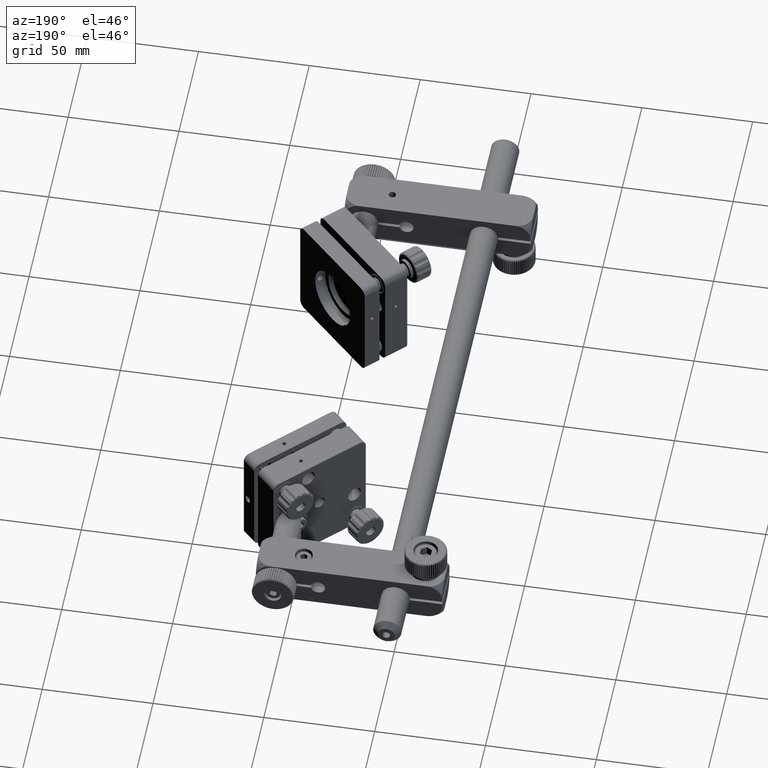
[diagram: clean part render]
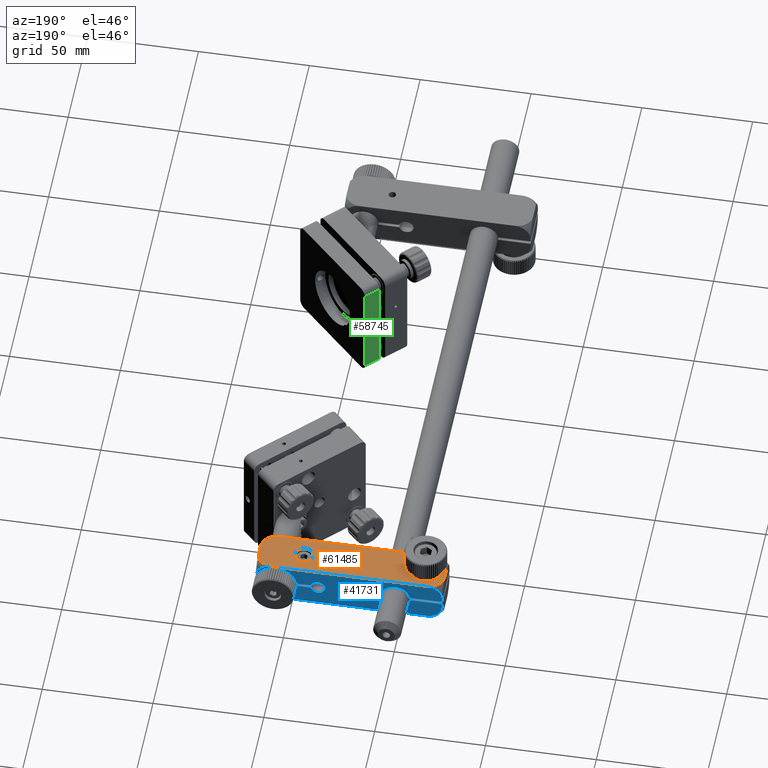
[diagram: same view with three faces highlighted in distinct colors, each labeled with its STEP entity id]
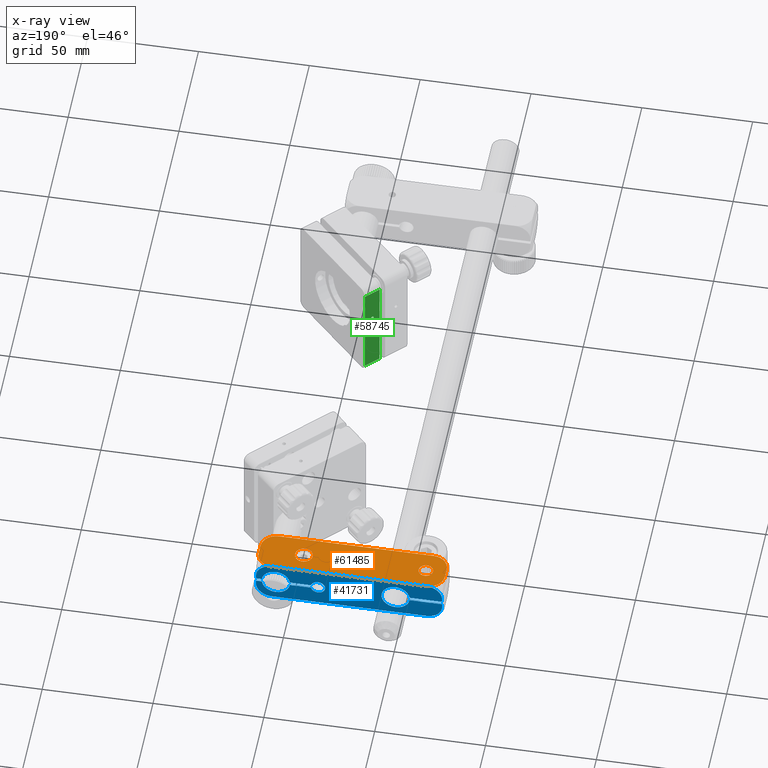
[diagram: x-ray of the same camera — body ghosted, the three highlighted faces saturated]
A machine part, auxiliary view with three faces highlighted in distinct colors.
The next image is the same camera in x-ray (body ghosted, the three faces saturated) — at least one of them is partly hidden behind the body in this view.
Their STEP definitions:

[orange] entity #61485 — the highlighted planar face has unit normal (-0, 0, 1).
#711 = ORIENTED_EDGE ( 'NONE', *, *, #60690, .T. ) ;
#1943 = CARTESIAN_POINT ( 'NONE',  ( -13.92893218813413547, 296.5265331105718474, 9.499999999999944933 ) ) ;
#2108 = CARTESIAN_POINT ( 'NONE',  ( 63.00000000000023448, 296.5265331105718474, 9.499999999999950262 ) ) ;
#2191 = FACE_BOUND ( 'NONE', #40521, .T. ) ;
#2286 = ORIENTED_EDGE ( 'NONE', *, *, #54175, .F. ) ;
#3126 = CARTESIAN_POINT ( 'NONE',  ( -20.99999999999964828, 277.5265331105718474, 9.499999999999944933 ) ) ;
#3468 = CARTESIAN_POINT ( 'NONE',  ( -20.99999999999964828, 296.5265331105718474, 9.499999999999950262 ) ) ;
#3612 = DIRECTION ( 'NONE',  ( -2.465190328815663534E-32, 2.958228394578796022E-31, 1.000000000000000000 ) ) ;
#4088 = LINE ( 'NONE', #3468, #5450 ) ;
#4736 = CARTESIAN_POINT ( 'NONE',  ( -20.99999999999964828, 277.5265331105718474, 9.499999999999944933 ) ) ;
#5450 = VECTOR ( 'NONE', #32068, 1000.000000000000000 ) ;
#7651 = CARTESIAN_POINT ( 'NONE',  ( -20.99999999999957723, 284.5976009224373797, 9.500000000000024869 ) ) ;
#8198 = EDGE_CURVE ( 'NONE', #55094, #60157, #62648, .T. ) ;
#8672 = AXIS2_PLACEMENT_3D ( 'NONE', #47060, #3612, #61937 ) ;
#9359 = CARTESIAN_POINT ( 'NONE',  ( -11.99999999999964650, 287.0265331105718474, 9.499999999999944933 ) ) ;
#10318 = VERTEX_POINT ( 'NONE', #56365 ) ;
#10504 = AXIS2_PLACEMENT_3D ( 'NONE', #51375, #41589, #23432 ) ;
#11058 = EDGE_CURVE ( 'NONE', #35267, #29755, #53209, .T. ) ;
#11471 = ORIENTED_EDGE ( 'NONE', *, *, #11058, .F. ) ;
#11960 = EDGE_CURVE ( 'NONE', #21051, #10318, #40308, .T. ) ;
#12825 = AXIS2_PLACEMENT_3D ( 'NONE', #24166, #49210, #20071 ) ;
#15971 = VERTEX_POINT ( 'NONE', #18796 ) ;
#17145 = EDGE_LOOP ( 'NONE', ( #58792, #59178, #42184, #41828, #43434, #52785, #711, #28288 ) ) ;
#17185 = DIRECTION ( 'NONE',  ( -2.465190328815663534E-32, 2.958228394578796022E-31, 1.000000000000000000 ) ) ;
#18012 = DIRECTION ( 'NONE',  ( -2.465190328815663534E-32, 2.958228394578796022E-31, 1.000000000000000000 ) ) ;
#18401 = EDGE_CURVE ( 'NONE', #56590, #60876, #32522, .T. ) ;
#18796 = CARTESIAN_POINT ( 'NONE',  ( 63.00000000000020606, 284.5976009224373797, 9.499999999999989342 ) ) ;
#20071 = DIRECTION ( 'NONE',  ( 1.000000000000000000, 0.000000000000000000, 0.000000000000000000 ) ) ;
#20130 = CARTESIAN_POINT ( 'NONE',  ( 47.00000000000028422, 287.0265331105718474, 9.499999999999944933 ) ) ;
#21029 = DIRECTION ( 'NONE',  ( -2.465190328815663534E-32, 2.958228394578796022E-31, 1.000000000000000000 ) ) ;
#21051 = VERTEX_POINT ( 'NONE', #20130 ) ;
#21054 = VECTOR ( 'NONE', #49712, 1000.000000000000000 ) ;
#22677 = DIRECTION ( 'NONE',  ( -2.465190328815663534E-32, 2.958228394578796022E-31, 1.000000000000000000 ) ) ;
#23006 = CARTESIAN_POINT ( 'NONE',  ( -13.92893218813413547, 289.4554652987063719, 9.499999999999950262 ) ) ;
#23432 = DIRECTION ( 'NONE',  ( 1.000000000000000000, 0.000000000000000000, 0.000000000000000000 ) ) ;
#23740 = EDGE_CURVE ( 'NONE', #40193, #57499, #28869, .T. ) ;
#23900 = CARTESIAN_POINT ( 'NONE',  ( 55.92893218813475897, 277.5265331105718474, 9.499999999999944933 ) ) ;
#24166 = CARTESIAN_POINT ( 'NONE',  ( 43.00000000000029843, 287.0265331105718474, 9.499999999999944933 ) ) ;
#24944 = CIRCLE ( 'NONE', #8672, 3.249999999999997780 ) ;
#25146 = CARTESIAN_POINT ( 'NONE',  ( 43.00000000000029843, 287.0265331105718474, 9.499999999999944933 ) ) ;
#26394 = CARTESIAN_POINT ( 'NONE',  ( -13.92893218813413547, 284.5976009224373797, 9.499999999999944933 ) ) ;
#26548 = LINE ( 'NONE', #2108, #21054 ) ;
#26628 = PLANE ( 'NONE',  #38420 ) ;
#28068 = CIRCLE ( 'NONE', #46299, 7.071067811865497710 ) ;
#28288 = ORIENTED_EDGE ( 'NONE', *, *, #18401, .T. ) ;
#28869 = LINE ( 'NONE', #4736, #39922 ) ;
#29755 = VERTEX_POINT ( 'NONE', #33725 ) ;
#29834 = CIRCLE ( 'NONE', #56075, 3.999999999999989786 ) ;
#30055 = CARTESIAN_POINT ( 'NONE',  ( -20.99999999999964828, 296.5265331105718474, 9.499999999999950262 ) ) ;
#30786 = FACE_OUTER_BOUND ( 'NONE', #17145, .T. ) ;
#32068 = DIRECTION ( 'NONE',  ( -4.299226218971816190E-31, -1.000000000000000000, -2.958228394578794270E-31 ) ) ;
#32522 = CIRCLE ( 'NONE', #52755, 7.071067811865491493 ) ;
#33725 = CARTESIAN_POINT ( 'NONE',  ( -8.749999999999648281, 287.0265331105718474, 9.499999999999944933 ) ) ;
#33874 = EDGE_CURVE ( 'NONE', #10318, #21051, #29834, .T. ) ;
#35267 = VERTEX_POINT ( 'NONE', #56470 ) ;
#36859 = DIRECTION ( 'NONE',  ( -2.465190328815663534E-32, 2.958228394578796022E-31, 1.000000000000000000 ) ) ;
#38132 = CARTESIAN_POINT ( 'NONE',  ( -20.99999999999961275, 289.4554652987063719, 9.499999999999984013 ) ) ;
#38420 = AXIS2_PLACEMENT_3D ( 'NONE', #3126, #50709, #55777 ) ;
#39922 = VECTOR ( 'NONE', #58624, 1000.000000000000000 ) ;
#40193 = VERTEX_POINT ( 'NONE', #49225 ) ;
#40308 = CIRCLE ( 'NONE', #12825, 3.999999999999989786 ) ;
#40497 = AXIS2_PLACEMENT_3D ( 'NONE', #23006, #22677, #42051 ) ;
#40521 = EDGE_LOOP ( 'NONE', ( #2286, #11471 ) ) ;
#41352 = ORIENTED_EDGE ( 'NONE', *, *, #33874, .F. ) ;
#41589 = DIRECTION ( 'NONE',  ( -2.465190328815663534E-32, 2.958228394578796022E-31, 1.000000000000000000 ) ) ;
#41828 = ORIENTED_EDGE ( 'NONE', *, *, #60026, .T. ) ;
#42051 = DIRECTION ( 'NONE',  ( 1.000000000000000000, 0.000000000000000000, 0.000000000000000000 ) ) ;
#42184 = ORIENTED_EDGE ( 'NONE', *, *, #51955, .T. ) ;
#42262 = EDGE_CURVE ( 'NONE', #60876, #55094, #59495, .T. ) ;
#42714 = DIRECTION ( 'NONE',  ( 1.000000000000000000, 0.000000000000000000, 0.000000000000000000 ) ) ;
#43434 = ORIENTED_EDGE ( 'NONE', *, *, #23740, .T. ) ;
#44925 = DIRECTION ( 'NONE',  ( -1.000000000000000000, -4.303078078860594165E-31, -2.465190328815664081E-32 ) ) ;
#45142 = CARTESIAN_POINT ( 'NONE',  ( 63.00000000000017764, 289.4554652987063719, 9.500000000000019540 ) ) ;
#45172 = VECTOR ( 'NONE', #44925, 1000.000000000000000 ) ;
#46027 = CARTESIAN_POINT ( 'NONE',  ( 55.92893218813475897, 289.4554652987063719, 9.499999999999944933 ) ) ;
#46299 = AXIS2_PLACEMENT_3D ( 'NONE', #26394, #36859, #54901 ) ;
#47060 = CARTESIAN_POINT ( 'NONE',  ( -11.99999999999964650, 287.0265331105718474, 9.499999999999944933 ) ) ;
#47928 = EDGE_LOOP ( 'NONE', ( #60989, #41352 ) ) ;
#49005 = CIRCLE ( 'NONE', #10504, 7.071067811865491493 ) ;
#49210 = DIRECTION ( 'NONE',  ( -2.465190328815663534E-32, 2.958228394578796022E-31, 1.000000000000000000 ) ) ;
#49225 = CARTESIAN_POINT ( 'NONE',  ( -13.92893218813413547, 277.5265331105718474, 9.499999999999950262 ) ) ;
#49712 = DIRECTION ( 'NONE',  ( 4.299226218971816190E-31, 1.000000000000000000, 2.958228394578794270E-31 ) ) ;
#50709 = DIRECTION ( 'NONE',  ( -2.465190328815663534E-32, 2.958228394578796460E-31, 1.000000000000000000 ) ) ;
#51375 = CARTESIAN_POINT ( 'NONE',  ( 55.92893218813475897, 284.5976009224373797, 9.499999999999944933 ) ) ;
#51896 = EDGE_CURVE ( 'NONE', #57499, #15971, #49005, .T. ) ;
#51955 = EDGE_CURVE ( 'NONE', #60157, #56563, #4088, .T. ) ;
#52755 = AXIS2_PLACEMENT_3D ( 'NONE', #46027, #17185, #56460 ) ;
#52785 = ORIENTED_EDGE ( 'NONE', *, *, #51896, .T. ) ;
#53209 = CIRCLE ( 'NONE', #58260, 3.249999999999997780 ) ;
#54175 = EDGE_CURVE ( 'NONE', #29755, #35267, #24944, .T. ) ;
#54901 = DIRECTION ( 'NONE',  ( 1.000000000000000000, 0.000000000000000000, 0.000000000000000000 ) ) ;
#55094 = VERTEX_POINT ( 'NONE', #1943 ) ;
#55777 = DIRECTION ( 'NONE',  ( 1.000000000000000000, 4.299226218971819693E-31, 2.465190328815663534E-32 ) ) ;
#56075 = AXIS2_PLACEMENT_3D ( 'NONE', #25146, #21029, #58715 ) ;
#56365 = CARTESIAN_POINT ( 'NONE',  ( 39.00000000000029843, 287.0265331105718474, 9.499999999999944933 ) ) ;
#56460 = DIRECTION ( 'NONE',  ( 1.000000000000000000, 0.000000000000000000, 0.000000000000000000 ) ) ;
#56470 = CARTESIAN_POINT ( 'NONE',  ( -15.24999999999964828, 287.0265331105718474, 9.499999999999944933 ) ) ;
#56563 = VERTEX_POINT ( 'NONE', #7651 ) ;
#56590 = VERTEX_POINT ( 'NONE', #45142 ) ;
#57499 = VERTEX_POINT ( 'NONE', #23900 ) ;
#58260 = AXIS2_PLACEMENT_3D ( 'NONE', #9359, #18012, #42714 ) ;
#58506 = CARTESIAN_POINT ( 'NONE',  ( 55.92893218813475897, 296.5265331105718474, 9.499999999999944933 ) ) ;
#58624 = DIRECTION ( 'NONE',  ( 1.000000000000000000, 4.303078078860594165E-31, 2.465190328815664081E-32 ) ) ;
#58715 = DIRECTION ( 'NONE',  ( 1.000000000000000000, 0.000000000000000000, 0.000000000000000000 ) ) ;
#58792 = ORIENTED_EDGE ( 'NONE', *, *, #42262, .T. ) ;
#59178 = ORIENTED_EDGE ( 'NONE', *, *, #8198, .T. ) ;
#59495 = LINE ( 'NONE', #30055, #45172 ) ;
#60026 = EDGE_CURVE ( 'NONE', #56563, #40193, #28068, .T. ) ;
#60157 = VERTEX_POINT ( 'NONE', #38132 ) ;
#60690 = EDGE_CURVE ( 'NONE', #15971, #56590, #26548, .T. ) ;
#60847 = FACE_BOUND ( 'NONE', #47928, .T. ) ;
#60876 = VERTEX_POINT ( 'NONE', #58506 ) ;
#60989 = ORIENTED_EDGE ( 'NONE', *, *, #11960, .F. ) ;
#61485 = ADVANCED_FACE ( 'NONE', ( #2191, #60847, #30786 ), #26628, .T. ) ;
#61937 = DIRECTION ( 'NONE',  ( 1.000000000000000000, 0.000000000000000000, 0.000000000000000000 ) ) ;
#62648 = CIRCLE ( 'NONE', #40497, 7.071067811865497710 ) ;

[blue] entity #41731 — the highlighted planar face has unit normal (-0, -1, 0).
#145 = AXIS2_PLACEMENT_3D ( 'NONE', #30584, #50197, #1689 ) ;
#235 = CARTESIAN_POINT ( 'NONE',  ( 3.330669073875469621E-13, 296.5265331105718474, 6.349999999999959677 ) ) ;
#477 = CARTESIAN_POINT ( 'NONE',  ( 63.00000000000023448, 296.5265331105717905, -2.428932188134598658 ) ) ;
#1366 = EDGE_CURVE ( 'NONE', #5551, #27847, #14448, .T. ) ;
#1689 = DIRECTION ( 'NONE',  ( 2.465190328815663534E-32, -2.958228394578796460E-31, -1.000000000000000000 ) ) ;
#1808 = LINE ( 'NONE', #55062, #26524 ) ;
#1829 = EDGE_LOOP ( 'NONE', ( #14443, #25384, #23753, #51658, #4506, #57314, #12341, #11528, #9493, #18837, #13337, #44309, #58826, #57987, #29081, #23999, #17577, #47791, #11092, #45168, #31450, #34346, #58493, #48022, #45021, #60160, #21972, #24480, #8327 ) ) ;
#1920 = DIRECTION ( 'NONE',  ( 1.000000000000000000, 4.299295579181839416E-31, 1.137413894084779007E-17 ) ) ;
#1931 = CARTESIAN_POINT ( 'NONE',  ( -13.92893218813413547, 296.5265331105718474, 2.428932188134509840 ) ) ;
#1943 = CARTESIAN_POINT ( 'NONE',  ( -13.92893218813413547, 296.5265331105718474, 9.499999999999944933 ) ) ;
#2158 = CARTESIAN_POINT ( 'NONE',  ( 3.330669073875469621E-13, 296.5265331105718474, -4.205630255272791670E-14 ) ) ;
#2351 = EDGE_CURVE ( 'NONE', #39948, #29371, #44188, .T. ) ;
#2576 = DIRECTION ( 'NONE',  ( 2.465190328815663534E-32, -2.958228394578796022E-31, -1.000000000000000000 ) ) ;
#3088 = CARTESIAN_POINT ( 'NONE',  ( 55.92893218813475897, 296.5265331105718474, -2.428932188134586223 ) ) ;
#3379 = DIRECTION ( 'NONE',  ( -4.299226218971816190E-31, -1.000000000000000000, -2.958228394578794270E-31 ) ) ;
#3814 = VECTOR ( 'NONE', #52879, 1000.000000000000000 ) ;
#3953 = AXIS2_PLACEMENT_3D ( 'NONE', #43366, #62668, #14431 ) ;
#4506 = ORIENTED_EDGE ( 'NONE', *, *, #41036, .F. ) ;
#4550 = VERTEX_POINT ( 'NONE', #57791 ) ;
#4559 = AXIS2_PLACEMENT_3D ( 'NONE', #15912, #54601, #49834 ) ;
#5061 = CARTESIAN_POINT ( 'NONE',  ( 54.00000000000027001, 296.5265331105718474, -4.866917686336874758E-14 ) ) ;
#5268 = CARTESIAN_POINT ( 'NONE',  ( 60.92893218813474476, 296.5265331105718474, -7.428932188134569792 ) ) ;
#5551 = VERTEX_POINT ( 'NONE', #61744 ) ;
#5629 = VERTEX_POINT ( 'NONE', #48438 ) ;
#6415 = VERTEX_POINT ( 'NONE', #43787 ) ;
#6450 = CIRCLE ( 'NONE', #13450, 7.071067811865463959 ) ;
#6668 = VECTOR ( 'NONE', #2576, 1000.000000000000000 ) ;
#6980 = DIRECTION ( 'NONE',  ( 0.000000000000000000, 0.000000000000000000, -1.000000000000000000 ) ) ;
#7203 = LINE ( 'NONE', #24481, #35125 ) ;
#7292 = CARTESIAN_POINT ( 'NONE',  ( 35.00000000000029132, 296.5265331105718474, -4.634242479110623710E-14 ) ) ;
#7322 = LINE ( 'NONE', #54315, #6668 ) ;
#7604 = EDGE_CURVE ( 'NONE', #5551, #41181, #54356, .T. ) ;
#8327 = ORIENTED_EDGE ( 'NONE', *, *, #2351, .F. ) ;
#8767 = EDGE_CURVE ( 'NONE', #40830, #17352, #32082, .T. ) ;
#8770 = CARTESIAN_POINT ( 'NONE',  ( 60.30555310817405257, 296.5265331105718474, -0.7500000000000380806 ) ) ;
#8837 = AXIS2_PLACEMENT_3D ( 'NONE', #2158, #25681, #16129 ) ;
#9193 = EDGE_CURVE ( 'NONE', #46080, #45401, #1808, .T. ) ;
#9493 = ORIENTED_EDGE ( 'NONE', *, *, #8767, .F. ) ;
#10376 = CARTESIAN_POINT ( 'NONE',  ( -20.99999999999964828, 296.5265331105717905, 2.428932188134520498 ) ) ;
#11092 = ORIENTED_EDGE ( 'NONE', *, *, #51617, .F. ) ;
#11123 = EDGE_CURVE ( 'NONE', #6415, #54042, #13922, .T. ) ;
#11528 = ORIENTED_EDGE ( 'NONE', *, *, #51923, .F. ) ;
#11727 = DIRECTION ( 'NONE',  ( -4.299226218971816190E-31, -1.000000000000000000, -2.958228394578794270E-31 ) ) ;
#12341 = ORIENTED_EDGE ( 'NONE', *, *, #1366, .T. ) ;
#12963 = VECTOR ( 'NONE', #44811, 1000.000000000000000 ) ;
#13092 = CARTESIAN_POINT ( 'NONE',  ( 38.16227766016866951, 296.5265331105718474, -0.7500000000000385247 ) ) ;
#13247 = CARTESIAN_POINT ( 'NONE',  ( 35.00000000000029132, 296.5265331105718474, -4.634242479110623710E-14 ) ) ;
#13337 = ORIENTED_EDGE ( 'NONE', *, *, #58155, .F. ) ;
#13426 = CIRCLE ( 'NONE', #60074, 7.071067811865463071 ) ;
#13450 = AXIS2_PLACEMENT_3D ( 'NONE', #3088, #22451, #31989 ) ;
#13897 = EDGE_CURVE ( 'NONE', #31310, #41440, #47210, .T. ) ;
#13922 = CIRCLE ( 'NONE', #57504, 6.349999999999996092 ) ;
#14151 = CARTESIAN_POINT ( 'NONE',  ( 47.69444689182650876, 296.5265331105718474, 0.7499999999999606981 ) ) ;
#14431 = DIRECTION ( 'NONE',  ( 0.000000000000000000, 0.000000000000000000, -1.000000000000000000 ) ) ;
#14443 = ORIENTED_EDGE ( 'NONE', *, *, #42497, .F. ) ;
#14448 = LINE ( 'NONE', #53182, #14876 ) ;
#14876 = VECTOR ( 'NONE', #49055, 1000.000000000000000 ) ;
#15715 = CIRCLE ( 'NONE', #4559, 6.349999999999998757 ) ;
#15901 = CARTESIAN_POINT ( 'NONE',  ( 55.92893218813475897, 296.5265331105718474, -9.500000000000033751 ) ) ;
#15912 = CARTESIAN_POINT ( 'NONE',  ( 54.00000000000027001, 296.5265331105718474, -4.866917686336874758E-14 ) ) ;
#15930 = CARTESIAN_POINT ( 'NONE',  ( -20.99999999999964828, 296.5265331105718474, 0.7499999999999610312 ) ) ;
#16129 = DIRECTION ( 'NONE',  ( 0.000000000000000000, 0.000000000000000000, 1.000000000000000000 ) ) ;
#16248 = EDGE_CURVE ( 'NONE', #55094, #26882, #42429, .T. ) ;
#16264 = FACE_OUTER_BOUND ( 'NONE', #1829, .T. ) ;
#16655 = CARTESIAN_POINT ( 'NONE',  ( 38.16227766016866951, 296.5265331105718474, -0.7500000000000380806 ) ) ;
#16930 = VECTOR ( 'NONE', #1920, 1000.000000000000000 ) ;
#16977 = CARTESIAN_POINT ( 'NONE',  ( 54.00000000000027001, 296.5265331105718474, 6.349999999999954348 ) ) ;
#17229 = DIRECTION ( 'NONE',  ( -4.299226218971816190E-31, -1.000000000000000000, -2.958228394578794270E-31 ) ) ;
#17352 = VERTEX_POINT ( 'NONE', #57240 ) ;
#17577 = ORIENTED_EDGE ( 'NONE', *, *, #28733, .F. ) ;
#17798 = VERTEX_POINT ( 'NONE', #14151 ) ;
#17884 = EDGE_CURVE ( 'NONE', #51952, #31310, #21166, .T. ) ;
#18288 = AXIS2_PLACEMENT_3D ( 'NONE', #35874, #11727, #6980 ) ;
#18625 = DIRECTION ( 'NONE',  ( 4.299226218971816190E-31, 1.000000000000000000, 2.958228394578794270E-31 ) ) ;
#18837 = ORIENTED_EDGE ( 'NONE', *, *, #32814, .F. ) ;
#19370 = DIRECTION ( 'NONE',  ( 0.000000000000000000, 0.000000000000000000, 1.000000000000000000 ) ) ;
#19886 = DIRECTION ( 'NONE',  ( 0.000000000000000000, 0.000000000000000000, 1.000000000000000000 ) ) ;
#20552 = CARTESIAN_POINT ( 'NONE',  ( 55.92893218813475897, 296.5265331105718474, 2.428932188134511172 ) ) ;
#20900 = AXIS2_PLACEMENT_3D ( 'NONE', #47931, #33719, #53010 ) ;
#21166 = LINE ( 'NONE', #59183, #26366 ) ;
#21284 = LINE ( 'NONE', #22212, #16930 ) ;
#21972 = ORIENTED_EDGE ( 'NONE', *, *, #61211, .F. ) ;
#22016 = EDGE_CURVE ( 'NONE', #40117, #47482, #45888, .T. ) ;
#22212 = CARTESIAN_POINT ( 'NONE',  ( 38.16227766016866951, 296.5265331105718474, 0.7499999999999609201 ) ) ;
#22451 = DIRECTION ( 'NONE',  ( -4.299226218971816190E-31, -1.000000000000000000, -2.958228394578794270E-31 ) ) ;
#22803 = DIRECTION ( 'NONE',  ( 4.299226218971816190E-31, 1.000000000000000000, 2.958228394578794270E-31 ) ) ;
#23076 = LINE ( 'NONE', #8770, #25096 ) ;
#23089 = EDGE_CURVE ( 'NONE', #26882, #47314, #13426, .T. ) ;
#23657 = CARTESIAN_POINT ( 'NONE',  ( -18.92893218813411949, 296.5265331105718474, -7.428932188134571568 ) ) ;
#23753 = ORIENTED_EDGE ( 'NONE', *, *, #16248, .F. ) ;
#23999 = ORIENTED_EDGE ( 'NONE', *, *, #11123, .F. ) ;
#24076 = DIRECTION ( 'NONE',  ( -4.299226218971816190E-31, -1.000000000000000000, -2.958228394578794270E-31 ) ) ;
#24480 = ORIENTED_EDGE ( 'NONE', *, *, #28622, .F. ) ;
#24481 = CARTESIAN_POINT ( 'NONE',  ( -20.99999999999964828, 296.5265331105718474, -0.7500000000000384137 ) ) ;
#25096 = VECTOR ( 'NONE', #47171, 1000.000000000000000 ) ;
#25384 = ORIENTED_EDGE ( 'NONE', *, *, #23089, .F. ) ;
#25681 = DIRECTION ( 'NONE',  ( 4.299226218971816190E-31, 1.000000000000000000, 2.958228394578794270E-31 ) ) ;
#25886 = CARTESIAN_POINT ( 'NONE',  ( 47.69444689182650876, 296.5265331105718474, -0.7500000000000421885 ) ) ;
#26020 = EDGE_CURVE ( 'NONE', #4550, #5629, #46179, .T. ) ;
#26174 = EDGE_CURVE ( 'NONE', #5629, #51952, #7203, .T. ) ;
#26366 = VECTOR ( 'NONE', #46180, 1000.000000000000000 ) ;
#26378 = DIRECTION ( 'NONE',  ( 0.000000000000000000, 0.000000000000000000, 1.000000000000000000 ) ) ;
#26524 = VECTOR ( 'NONE', #35769, 1000.000000000000000 ) ;
#26882 = VERTEX_POINT ( 'NONE', #53713 ) ;
#27020 = AXIS2_PLACEMENT_3D ( 'NONE', #20552, #60753, #41751 ) ;
#27141 = CIRCLE ( 'NONE', #62552, 6.349999999999996980 ) ;
#27397 = EDGE_CURVE ( 'NONE', #46080, #48172, #41348, .T. ) ;
#27736 = VECTOR ( 'NONE', #42804, 1000.000000000000000 ) ;
#27847 = VERTEX_POINT ( 'NONE', #42709 ) ;
#28282 = CARTESIAN_POINT ( 'NONE',  ( 3.330669073875469621E-13, 296.5265331105718474, -4.205630255272791670E-14 ) ) ;
#28622 = EDGE_CURVE ( 'NONE', #29371, #35678, #43334, .T. ) ;
#28685 = VERTEX_POINT ( 'NONE', #59883 ) ;
#28710 = AXIS2_PLACEMENT_3D ( 'NONE', #13247, #22803, #47830 ) ;
#28733 = EDGE_CURVE ( 'NONE', #28685, #6415, #23076, .T. ) ;
#29081 = ORIENTED_EDGE ( 'NONE', *, *, #41506, .F. ) ;
#29371 = VERTEX_POINT ( 'NONE', #40846 ) ;
#29702 = DIRECTION ( 'NONE',  ( -1.000000000000000000, -4.303078078860594165E-31, -2.465190328815664081E-32 ) ) ;
#30055 = CARTESIAN_POINT ( 'NONE',  ( -20.99999999999964828, 296.5265331105718474, 9.499999999999950262 ) ) ;
#30252 = EDGE_CURVE ( 'NONE', #41440, #45401, #54632, .T. ) ;
#30584 = CARTESIAN_POINT ( 'NONE',  ( -20.99999999999964828, 296.5265331105718474, 9.499999999999950262 ) ) ;
#30808 = CIRCLE ( 'NONE', #53036, 3.249999999999999112 ) ;
#31310 = VERTEX_POINT ( 'NONE', #50308 ) ;
#31450 = ORIENTED_EDGE ( 'NONE', *, *, #9193, .T. ) ;
#31989 = DIRECTION ( 'NONE',  ( 0.000000000000000000, 0.000000000000000000, -1.000000000000000000 ) ) ;
#32082 = CIRCLE ( 'NONE', #52327, 6.349999999999998757 ) ;
#32814 = EDGE_CURVE ( 'NONE', #17798, #40830, #15715, .T. ) ;
#32911 = DIRECTION ( 'NONE',  ( 0.000000000000000000, 0.000000000000000000, 1.000000000000000000 ) ) ;
#33436 = CARTESIAN_POINT ( 'NONE',  ( -20.99999999999964828, 296.5265331105718474, 0.7499999999999610312 ) ) ;
#33474 = CARTESIAN_POINT ( 'NONE',  ( 38.16227766016866951, 296.5265331105718474, 0.7499999999999609201 ) ) ;
#33719 = DIRECTION ( 'NONE',  ( 4.299226218971816190E-31, 1.000000000000000000, 2.958228394578794270E-31 ) ) ;
#34069 = CIRCLE ( 'NONE', #53273, 3.249999999999999112 ) ;
#34346 = ORIENTED_EDGE ( 'NONE', *, *, #30252, .F. ) ;
#34771 = CARTESIAN_POINT ( 'NONE',  ( 35.00000000000029132, 296.5265331105718474, -4.634242479110623710E-14 ) ) ;
#35106 = DIRECTION ( 'NONE',  ( 4.299226218971816190E-31, 1.000000000000000000, 2.958228394578794270E-31 ) ) ;
#35125 = VECTOR ( 'NONE', #45924, 1000.000000000000000 ) ;
#35678 = VERTEX_POINT ( 'NONE', #235 ) ;
#35769 = DIRECTION ( 'NONE',  ( -1.000000000000000000, -4.303078078860594165E-31, -2.465190328815664081E-32 ) ) ;
#35874 = CARTESIAN_POINT ( 'NONE',  ( 55.92893218813475897, 296.5265331105718474, 2.428932188134511172 ) ) ;
#36532 = DIRECTION ( 'NONE',  ( 4.299226218971816190E-31, 1.000000000000000000, 2.958228394578794270E-31 ) ) ;
#36588 = DIRECTION ( 'NONE',  ( 0.000000000000000000, 0.000000000000000000, -1.000000000000000000 ) ) ;
#38308 = AXIS2_PLACEMENT_3D ( 'NONE', #62419, #24076, #43432 ) ;
#38690 = LINE ( 'NONE', #49078, #3814 ) ;
#39948 = VERTEX_POINT ( 'NONE', #33436 ) ;
#40117 = VERTEX_POINT ( 'NONE', #49836 ) ;
#40830 = VERTEX_POINT ( 'NONE', #16977 ) ;
#40846 = CARTESIAN_POINT ( 'NONE',  ( -6.305553108173447718, 296.5265331105718474, 0.7499999999999603650 ) ) ;
#40913 = CARTESIAN_POINT ( 'NONE',  ( -13.92893218813413547, 296.5265331105718474, 2.428932188134509840 ) ) ;
#41036 = EDGE_CURVE ( 'NONE', #41181, #60876, #57737, .T. ) ;
#41181 = VERTEX_POINT ( 'NONE', #45613 ) ;
#41348 = CIRCLE ( 'NONE', #38308, 7.071067811865463959 ) ;
#41370 = CARTESIAN_POINT ( 'NONE',  ( -13.92893218813413547, 296.5265331105718474, -2.428932188134587555 ) ) ;
#41440 = VERTEX_POINT ( 'NONE', #23657 ) ;
#41506 = EDGE_CURVE ( 'NONE', #54042, #57575, #60100, .T. ) ;
#41731 = ADVANCED_FACE ( 'NONE', ( #16264 ), #54007, .F. ) ;
#41751 = DIRECTION ( 'NONE',  ( 0.000000000000000000, 0.000000000000000000, -1.000000000000000000 ) ) ;
#42262 = EDGE_CURVE ( 'NONE', #60876, #55094, #59495, .T. ) ;
#42429 = CIRCLE ( 'NONE', #43433, 7.071067811865463071 ) ;
#42497 = EDGE_CURVE ( 'NONE', #47314, #39948, #7322, .T. ) ;
#42674 = VECTOR ( 'NONE', #29702, 1000.000000000000000 ) ;
#42709 = CARTESIAN_POINT ( 'NONE',  ( 63.00000000000023448, 296.5265331105718474, 0.7499999999999610312 ) ) ;
#42804 = DIRECTION ( 'NONE',  ( 1.000000000000000000, 4.303078078860594165E-31, 2.465190328815664081E-32 ) ) ;
#43334 = CIRCLE ( 'NONE', #8837, 6.349999999999996980 ) ;
#43366 = CARTESIAN_POINT ( 'NONE',  ( -13.92893218813413547, 296.5265331105718474, -2.428932188134587555 ) ) ;
#43432 = DIRECTION ( 'NONE',  ( 0.000000000000000000, 0.000000000000000000, -1.000000000000000000 ) ) ;
#43433 = AXIS2_PLACEMENT_3D ( 'NONE', #1931, #46315, #55809 ) ;
#43732 = VERTEX_POINT ( 'NONE', #54673 ) ;
#43787 = CARTESIAN_POINT ( 'NONE',  ( 60.30555310817405257, 296.5265331105718474, -0.7500000000000380806 ) ) ;
#44023 = CARTESIAN_POINT ( 'NONE',  ( -13.92893218813412126, 296.5265331105718474, -9.500000000000049738 ) ) ;
#44188 = LINE ( 'NONE', #15930, #12963 ) ;
#44309 = ORIENTED_EDGE ( 'NONE', *, *, #22016, .F. ) ;
#44811 = DIRECTION ( 'NONE',  ( 1.000000000000000000, 4.302990398578656563E-31, -2.213493669684002345E-17 ) ) ;
#44925 = DIRECTION ( 'NONE',  ( -1.000000000000000000, -4.303078078860594165E-31, -2.465190328815664081E-32 ) ) ;
#45021 = ORIENTED_EDGE ( 'NONE', *, *, #26174, .F. ) ;
#45168 = ORIENTED_EDGE ( 'NONE', *, *, #27397, .F. ) ;
#45172 = VECTOR ( 'NONE', #44925, 1000.000000000000000 ) ;
#45401 = VERTEX_POINT ( 'NONE', #44023 ) ;
#45613 = CARTESIAN_POINT ( 'NONE',  ( 60.92893218813474476, 296.5265331105718474, 7.428932188134493408 ) ) ;
#45888 = CIRCLE ( 'NONE', #28710, 3.249999999999999112 ) ;
#45924 = DIRECTION ( 'NONE',  ( -1.000000000000000000, -4.303165759142532642E-31, -2.213493669684007276E-17 ) ) ;
#46080 = VERTEX_POINT ( 'NONE', #15901 ) ;
#46179 = CIRCLE ( 'NONE', #20900, 6.349999999999996980 ) ;
#46180 = DIRECTION ( 'NONE',  ( 2.465190328815663534E-32, -2.958228394578796022E-31, -1.000000000000000000 ) ) ;
#46315 = DIRECTION ( 'NONE',  ( -4.299226218971816190E-31, -1.000000000000000000, -2.958228394578794270E-31 ) ) ;
#46537 = DIRECTION ( 'NONE',  ( 0.000000000000000000, 0.000000000000000000, -1.000000000000000000 ) ) ;
#46962 = DIRECTION ( 'NONE',  ( 0.000000000000000000, 0.000000000000000000, 1.000000000000000000 ) ) ;
#47171 = DIRECTION ( 'NONE',  ( -1.000000000000000000, -4.299226218971818817E-31, -2.465190328815663534E-32 ) ) ;
#47210 = CIRCLE ( 'NONE', #58330, 7.071067811865462183 ) ;
#47314 = VERTEX_POINT ( 'NONE', #10376 ) ;
#47482 = VERTEX_POINT ( 'NONE', #33474 ) ;
#47791 = ORIENTED_EDGE ( 'NONE', *, *, #60656, .T. ) ;
#47830 = DIRECTION ( 'NONE',  ( 0.000000000000000000, 0.000000000000000000, 1.000000000000000000 ) ) ;
#47931 = CARTESIAN_POINT ( 'NONE',  ( 3.330669073875469621E-13, 296.5265331105718474, -4.205630255272791670E-14 ) ) ;
#48022 = ORIENTED_EDGE ( 'NONE', *, *, #17884, .F. ) ;
#48172 = VERTEX_POINT ( 'NONE', #5268 ) ;
#48438 = CARTESIAN_POINT ( 'NONE',  ( -6.305553108173444166, 296.5265331105718474, -0.7500000000000387468 ) ) ;
#49055 = DIRECTION ( 'NONE',  ( 2.465190328815663534E-32, -2.958228394578796022E-31, -1.000000000000000000 ) ) ;
#49078 = CARTESIAN_POINT ( 'NONE',  ( 63.00000000000023448, 296.5265331105718474, 9.499999999999950262 ) ) ;
#49834 = DIRECTION ( 'NONE',  ( 0.000000000000000000, 0.000000000000000000, 1.000000000000000000 ) ) ;
#49836 = CARTESIAN_POINT ( 'NONE',  ( 35.00000000000029132, 296.5265331105718474, 3.249999999999954703 ) ) ;
#50197 = DIRECTION ( 'NONE',  ( -4.299226218971817066E-31, -1.000000000000000000, 2.958228394578796460E-31 ) ) ;
#50308 = CARTESIAN_POINT ( 'NONE',  ( -20.99999999999964828, 296.5265331105717905, -2.428932188134598658 ) ) ;
#51617 = EDGE_CURVE ( 'NONE', #48172, #62080, #6450, .T. ) ;
#51658 = ORIENTED_EDGE ( 'NONE', *, *, #42262, .F. ) ;
#51923 = EDGE_CURVE ( 'NONE', #17352, #27847, #61494, .T. ) ;
#51952 = VERTEX_POINT ( 'NONE', #61797 ) ;
#52327 = AXIS2_PLACEMENT_3D ( 'NONE', #5061, #62775, #19370 ) ;
#52879 = DIRECTION ( 'NONE',  ( 2.465190328815663534E-32, -2.958228394578796022E-31, -1.000000000000000000 ) ) ;
#53010 = DIRECTION ( 'NONE',  ( 0.000000000000000000, 0.000000000000000000, 1.000000000000000000 ) ) ;
#53036 = AXIS2_PLACEMENT_3D ( 'NONE', #7292, #36532, #26378 ) ;
#53182 = CARTESIAN_POINT ( 'NONE',  ( 63.00000000000023448, 296.5265331105718474, 9.499999999999950262 ) ) ;
#53273 = AXIS2_PLACEMENT_3D ( 'NONE', #34771, #35106, #19886 ) ;
#53713 = CARTESIAN_POINT ( 'NONE',  ( -18.92893218813411949, 296.5265331105718474, 7.428932188134491632 ) ) ;
#54007 = PLANE ( 'NONE',  #145 ) ;
#54042 = VERTEX_POINT ( 'NONE', #25886 ) ;
#54315 = CARTESIAN_POINT ( 'NONE',  ( -20.99999999999964828, 296.5265331105718474, 9.499999999999950262 ) ) ;
#54356 = CIRCLE ( 'NONE', #27020, 7.071067811865463959 ) ;
#54601 = DIRECTION ( 'NONE',  ( 4.299226218971816190E-31, 1.000000000000000000, 2.958228394578794270E-31 ) ) ;
#54632 = CIRCLE ( 'NONE', #3953, 7.071067811865462183 ) ;
#54673 = CARTESIAN_POINT ( 'NONE',  ( 35.00000000000029132, 296.5265331105718474, -3.250000000000047518 ) ) ;
#55062 = CARTESIAN_POINT ( 'NONE',  ( -20.99999999999964828, 296.5265331105718474, -9.500000000000028422 ) ) ;
#55094 = VERTEX_POINT ( 'NONE', #1943 ) ;
#55210 = EDGE_CURVE ( 'NONE', #43732, #40117, #30808, .T. ) ;
#55809 = DIRECTION ( 'NONE',  ( 0.000000000000000000, 0.000000000000000000, -1.000000000000000000 ) ) ;
#56734 = CARTESIAN_POINT ( 'NONE',  ( 60.30555310817405257, 296.5265331105718474, 0.7499999999999610312 ) ) ;
#57240 = CARTESIAN_POINT ( 'NONE',  ( 60.30555310817405257, 296.5265331105718474, 0.7499999999999614753 ) ) ;
#57267 = EDGE_CURVE ( 'NONE', #57575, #43732, #34069, .T. ) ;
#57314 = ORIENTED_EDGE ( 'NONE', *, *, #7604, .F. ) ;
#57504 = AXIS2_PLACEMENT_3D ( 'NONE', #62655, #18625, #32911 ) ;
#57575 = VERTEX_POINT ( 'NONE', #13092 ) ;
#57737 = CIRCLE ( 'NONE', #18288, 7.071067811865463959 ) ;
#57791 = CARTESIAN_POINT ( 'NONE',  ( 3.338445581050055089E-13, 296.5265331105718474, -6.350000000000043165 ) ) ;
#57987 = ORIENTED_EDGE ( 'NONE', *, *, #57267, .F. ) ;
#58155 = EDGE_CURVE ( 'NONE', #47482, #17798, #21284, .T. ) ;
#58330 = AXIS2_PLACEMENT_3D ( 'NONE', #41370, #17229, #36588 ) ;
#58493 = ORIENTED_EDGE ( 'NONE', *, *, #13897, .F. ) ;
#58506 = CARTESIAN_POINT ( 'NONE',  ( 55.92893218813475897, 296.5265331105718474, 9.499999999999944933 ) ) ;
#58826 = ORIENTED_EDGE ( 'NONE', *, *, #55210, .F. ) ;
#59183 = CARTESIAN_POINT ( 'NONE',  ( -20.99999999999964828, 296.5265331105718474, 9.499999999999950262 ) ) ;
#59495 = LINE ( 'NONE', #30055, #45172 ) ;
#59883 = CARTESIAN_POINT ( 'NONE',  ( 63.00000000000023448, 296.5265331105718474, -0.7500000000000380806 ) ) ;
#60074 = AXIS2_PLACEMENT_3D ( 'NONE', #40913, #3379, #46537 ) ;
#60100 = LINE ( 'NONE', #16655, #42674 ) ;
#60160 = ORIENTED_EDGE ( 'NONE', *, *, #26020, .F. ) ;
#60656 = EDGE_CURVE ( 'NONE', #28685, #62080, #38690, .T. ) ;
#60753 = DIRECTION ( 'NONE',  ( -4.299226218971816190E-31, -1.000000000000000000, -2.958228394578794270E-31 ) ) ;
#60876 = VERTEX_POINT ( 'NONE', #58506 ) ;
#61211 = EDGE_CURVE ( 'NONE', #35678, #4550, #27141, .T. ) ;
#61494 = LINE ( 'NONE', #56734, #27736 ) ;
#61539 = DIRECTION ( 'NONE',  ( 4.299226218971816190E-31, 1.000000000000000000, 2.958228394578794270E-31 ) ) ;
#61744 = CARTESIAN_POINT ( 'NONE',  ( 63.00000000000023448, 296.5265331105717905, 2.428932188134520498 ) ) ;
#61797 = CARTESIAN_POINT ( 'NONE',  ( -20.99999999999964828, 296.5265331105718474, -0.7500000000000384137 ) ) ;
#62080 = VERTEX_POINT ( 'NONE', #477 ) ;
#62419 = CARTESIAN_POINT ( 'NONE',  ( 55.92893218813475897, 296.5265331105718474, -2.428932188134586223 ) ) ;
#62552 = AXIS2_PLACEMENT_3D ( 'NONE', #28282, #61539, #46962 ) ;
#62655 = CARTESIAN_POINT ( 'NONE',  ( 54.00000000000027001, 296.5265331105718474, -4.866917686336874758E-14 ) ) ;
#62668 = DIRECTION ( 'NONE',  ( -4.299226218971816190E-31, -1.000000000000000000, -2.958228394578794270E-31 ) ) ;
#62775 = DIRECTION ( 'NONE',  ( 4.299226218971816190E-31, 1.000000000000000000, 2.958228394578794270E-31 ) ) ;

[green] entity #58745 — the highlighted planar face has unit normal (-0.7071, 0.7071, -0).
#1211 = CIRCLE ( 'NONE', #30629, 0.8500000000000146327 ) ;
#1875 = CARTESIAN_POINT ( 'NONE',  ( 39.13327634911316011, 134.3633144465468945, 6.000000000000064837 ) ) ;
#2288 = VERTEX_POINT ( 'NONE', #47357 ) ;
#3068 = DIRECTION ( 'NONE',  ( -0.7071067811865522357, 0.7071067811865429098, -3.070634274714137300E-18 ) ) ;
#4735 = VECTOR ( 'NONE', #7267, 1000.000000000000000 ) ;
#7267 = DIRECTION ( 'NONE',  ( 2.067572776979225912E-16, 2.024147450615368976E-16, -1.000000000000000000 ) ) ;
#9511 = EDGE_CURVE ( 'NONE', #42734, #38859, #1211, .T. ) ;
#11302 = EDGE_LOOP ( 'NONE', ( #32007, #54992, #22041, #12985 ) ) ;
#12985 = ORIENTED_EDGE ( 'NONE', *, *, #56145, .T. ) ;
#13086 = LINE ( 'NONE', #56858, #47013 ) ;
#14502 = CARTESIAN_POINT ( 'NONE',  ( 36.30484922436703954, 131.5348873218006531, 22.00000000000002132 ) ) ;
#15099 = EDGE_CURVE ( 'NONE', #2288, #57151, #57970, .T. ) ;
#15648 = VECTOR ( 'NONE', #22048, 1000.000000000000000 ) ;
#15865 = CARTESIAN_POINT ( 'NONE',  ( 38.53223558510458702, 133.7622736825383072, 6.000000000000063949 ) ) ;
#16922 = EDGE_CURVE ( 'NONE', #38859, #42734, #41503, .T. ) ;
#17952 = CARTESIAN_POINT ( 'NONE',  ( 41.96170347385933042, 137.1917415712931074, 22.00000000000002487 ) ) ;
#19239 = CARTESIAN_POINT ( 'NONE',  ( 36.30484922436702533, 131.5348873218006531, -21.99999999999998224 ) ) ;
#20697 = ORIENTED_EDGE ( 'NONE', *, *, #9511, .F. ) ;
#20788 = CARTESIAN_POINT ( 'NONE',  ( 39.73431711312172609, 134.9643552105554818, 6.000000000000065725 ) ) ;
#21241 = DIRECTION ( 'NONE',  ( -0.7071067811865522357, 0.7071067811865429098, 4.219748651150221749E-16 ) ) ;
#22041 = ORIENTED_EDGE ( 'NONE', *, *, #58104, .T. ) ;
#22048 = DIRECTION ( 'NONE',  ( -0.7071067811865445751, -0.7071067811865504593, -5.150960024595232098E-16 ) ) ;
#27204 = DIRECTION ( 'NONE',  ( 2.067572776979225912E-16, 2.024147450615368976E-16, -1.000000000000000000 ) ) ;
#30629 = AXIS2_PLACEMENT_3D ( 'NONE', #1875, #21241, #54200 ) ;
#31136 = CARTESIAN_POINT ( 'NONE',  ( 41.96170347385933042, 137.1917415712931074, 22.00000000000002487 ) ) ;
#32007 = ORIENTED_EDGE ( 'NONE', *, *, #15099, .F. ) ;
#32506 = DIRECTION ( 'NONE',  ( -0.7071067811865445751, -0.7071067811865504593, -5.150960024595232098E-16 ) ) ;
#32604 = FACE_OUTER_BOUND ( 'NONE', #11302, .T. ) ;
#33926 = DIRECTION ( 'NONE',  ( 2.067572776979225912E-16, 2.024147450615368976E-16, -1.000000000000000000 ) ) ;
#34478 = DIRECTION ( 'NONE',  ( -0.7071067811865522357, 0.7071067811865429098, 4.219748651150221749E-16 ) ) ;
#34744 = ORIENTED_EDGE ( 'NONE', *, *, #16922, .F. ) ;
#35405 = AXIS2_PLACEMENT_3D ( 'NONE', #58540, #34478, #38959 ) ;
#35566 = LINE ( 'NONE', #31136, #4735 ) ;
#38859 = VERTEX_POINT ( 'NONE', #20788 ) ;
#38959 = DIRECTION ( 'NONE',  ( 0.7071067811865475727, 0.7071067811865475727, 1.020425574103986644E-15 ) ) ;
#41503 = CIRCLE ( 'NONE', #35405, 0.8500000000000146327 ) ;
#41796 = FACE_BOUND ( 'NONE', #58714, .T. ) ;
#42295 = AXIS2_PLACEMENT_3D ( 'NONE', #61399, #3068, #27204 ) ;
#42425 = CARTESIAN_POINT ( 'NONE',  ( 41.96170347385933752, 137.1917415712931074, -21.99999999999997868 ) ) ;
#42734 = VERTEX_POINT ( 'NONE', #15865 ) ;
#47013 = VECTOR ( 'NONE', #32506, 1000.000000000000000 ) ;
#47357 = CARTESIAN_POINT ( 'NONE',  ( 36.30484922436703954, 131.5348873218006531, 22.00000000000002132 ) ) ;
#50567 = LINE ( 'NONE', #59773, #15648 ) ;
#51105 = VERTEX_POINT ( 'NONE', #17952 ) ;
#53717 = VERTEX_POINT ( 'NONE', #42425 ) ;
#54200 = DIRECTION ( 'NONE',  ( 0.7071067811865475727, 0.7071067811865475727, 1.020425574103986644E-15 ) ) ;
#54992 = ORIENTED_EDGE ( 'NONE', *, *, #56252, .F. ) ;
#56145 = EDGE_CURVE ( 'NONE', #53717, #57151, #50567, .T. ) ;
#56252 = EDGE_CURVE ( 'NONE', #51105, #2288, #13086, .T. ) ;
#56340 = PLANE ( 'NONE',  #42295 ) ;
#56858 = CARTESIAN_POINT ( 'NONE',  ( 41.96170347385933042, 137.1917415712931074, 22.00000000000002487 ) ) ;
#57151 = VERTEX_POINT ( 'NONE', #19239 ) ;
#57970 = LINE ( 'NONE', #14502, #58471 ) ;
#58104 = EDGE_CURVE ( 'NONE', #51105, #53717, #35566, .T. ) ;
#58471 = VECTOR ( 'NONE', #33926, 1000.000000000000000 ) ;
#58540 = CARTESIAN_POINT ( 'NONE',  ( 39.13327634911316011, 134.3633144465468945, 6.000000000000064837 ) ) ;
#58714 = EDGE_LOOP ( 'NONE', ( #34744, #20697 ) ) ;
#58745 = ADVANCED_FACE ( 'NONE', ( #41796, #32604 ), #56340, .T. ) ;
#59773 = CARTESIAN_POINT ( 'NONE',  ( 41.96170347385933752, 137.1917415712931074, -21.99999999999997868 ) ) ;
#61399 = CARTESIAN_POINT ( 'NONE',  ( 41.96170347385933042, 137.1917415712931074, 22.00000000000002487 ) ) ;